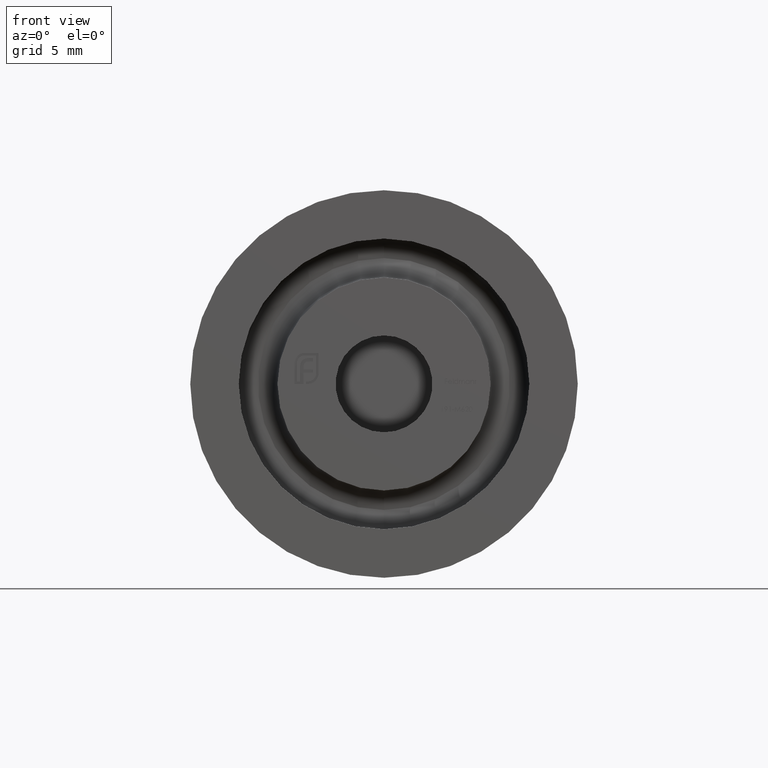
[diagram: clean part render]
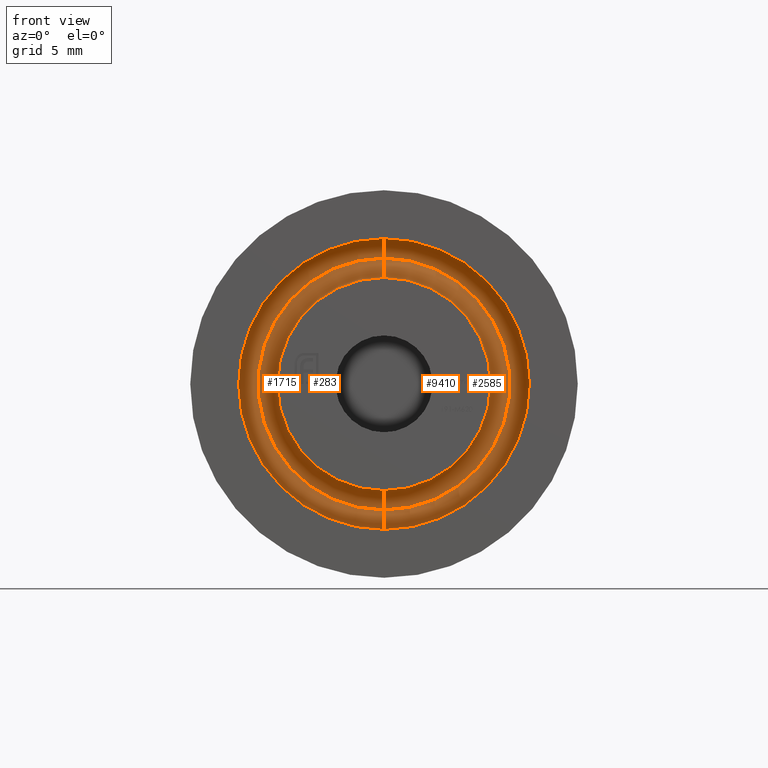
[diagram: same view with one multi-face feature highlighted, each face labeled with its STEP entity id]
A machine part, front view. The highlighted faces form ONE feature: a constant-radius fillet chain: 4 tangent blend faces with common blend radius 1 mm. The faces share edges in the B-rep.
Their STEP definitions:
[1] entity #2585 (Torus):
#234 = DIRECTION ( 'NONE',  ( -1.000000000000000000, -0.000000000000000000, -0.000000000000000000 ) ) ;
#1203 = ORIENTED_EDGE ( 'NONE', *, *, #12024, .T. ) ;
#1292 = VERTEX_POINT ( 'NONE', #8225 ) ;
#2585 = ADVANCED_FACE ( 'NONE', ( #7519 ), #10773, .F. ) ;
#4535 = EDGE_CURVE ( 'NONE', #11895, #7996, #5337, .T. ) ;
#4557 = CIRCLE ( 'NONE', #8206, 1.000000000000000000 ) ;
#4611 = DIRECTION ( 'NONE',  ( -0.000000000000000000, 1.000000000000000000, -0.000000000000000000 ) ) ;
#5337 = CIRCLE ( 'NONE', #14131, 7.500000000000000000 ) ;
#5494 = DIRECTION ( 'NONE',  ( -1.224646799147353454E-16, 0.000000000000000000, -1.000000000000000000 ) ) ;
#5743 = CARTESIAN_POINT ( 'NONE',  ( 0.000000000000000000, 3.000000000000000000, 0.000000000000000000 ) ) ;
#5919 = CARTESIAN_POINT ( 'NONE',  ( 0.000000000000000000, 2.000000000000000000, 0.000000000000000000 ) ) ;
#5969 = DIRECTION ( 'NONE',  ( 0.000000000000000000, 0.000000000000000000, -1.000000000000000000 ) ) ;
#7027 = DIRECTION ( 'NONE',  ( -0.000000000000000000, 1.000000000000000000, -0.000000000000000000 ) ) ;
#7150 = CARTESIAN_POINT ( 'NONE',  ( 0.000000000000000000, 2.000000000000000000, 0.000000000000000000 ) ) ;
#7519 = FACE_OUTER_BOUND ( 'NONE', #8544, .T. ) ;
#7756 = DIRECTION ( 'NONE',  ( 1.000000000000000000, 0.000000000000000000, -1.224646799147353207E-16 ) ) ;
#7966 = AXIS2_PLACEMENT_3D ( 'NONE', #7150, #10626, #11736 ) ;
#7996 = VERTEX_POINT ( 'NONE', #12736 ) ;
#8140 = CARTESIAN_POINT ( 'NONE',  ( 0.000000000000000000, 2.000000000000000000, -6.500000000000000000 ) ) ;
#8203 = CIRCLE ( 'NONE', #9260, 1.000000000000000000 ) ;
#8206 = AXIS2_PLACEMENT_3D ( 'NONE', #14650, #7756, #5494 ) ;
#8225 = CARTESIAN_POINT ( 'NONE',  ( 0.000000000000000000, 3.000000000000000888, -6.500000000000000000 ) ) ;
#8334 = DIRECTION ( 'NONE',  ( 0.000000000000000000, 0.000000000000000000, 1.000000000000000000 ) ) ;
#8366 = EDGE_CURVE ( 'NONE', #9546, #11895, #4557, .T. ) ;
#8544 = EDGE_LOOP ( 'NONE', ( #13641, #13460, #1203, #11136 ) ) ;
#8758 = AXIS2_PLACEMENT_3D ( 'NONE', #5743, #4611, #13891 ) ;
#9260 = AXIS2_PLACEMENT_3D ( 'NONE', #8140, #234, #8334 ) ;
#9546 = VERTEX_POINT ( 'NONE', #11522 ) ;
#9638 = CIRCLE ( 'NONE', #8758, 6.500000000000000000 ) ;
#9944 = CARTESIAN_POINT ( 'NONE',  ( 9.184850993605147944E-16, 2.000000000000000000, 7.500000000000000000 ) ) ;
#10626 = DIRECTION ( 'NONE',  ( 0.000000000000000000, -1.000000000000000000, 0.000000000000000000 ) ) ;
#10773 = TOROIDAL_SURFACE ( 'NONE', #7966, 6.500000000000000000, 1.000000000000000000 ) ;
#11136 = ORIENTED_EDGE ( 'NONE', *, *, #4535, .F. ) ;
#11522 = CARTESIAN_POINT ( 'NONE',  ( 7.960204194457795477E-16, 3.000000000000000888, 6.500000000000000000 ) ) ;
#11736 = DIRECTION ( 'NONE',  ( 0.000000000000000000, 0.000000000000000000, -1.000000000000000000 ) ) ;
#11895 = VERTEX_POINT ( 'NONE', #9944 ) ;
#12024 = EDGE_CURVE ( 'NONE', #1292, #7996, #8203, .T. ) ;
#12609 = EDGE_CURVE ( 'NONE', #9546, #1292, #9638, .T. ) ;
#12736 = CARTESIAN_POINT ( 'NONE',  ( 0.000000000000000000, 2.000000000000000000, -7.500000000000000000 ) ) ;
#13460 = ORIENTED_EDGE ( 'NONE', *, *, #12609, .T. ) ;
#13641 = ORIENTED_EDGE ( 'NONE', *, *, #8366, .F. ) ;
#13891 = DIRECTION ( 'NONE',  ( 0.000000000000000000, 0.000000000000000000, -1.000000000000000000 ) ) ;
#14131 = AXIS2_PLACEMENT_3D ( 'NONE', #5919, #7027, #5969 ) ;
#14650 = CARTESIAN_POINT ( 'NONE',  ( 7.960204194457795477E-16, 2.000000000000000000, 6.500000000000000000 ) ) ;
[2] entity #1715 (Torus):
#90 = DIRECTION ( 'NONE',  ( 0.000000000000000000, 0.000000000000000000, -1.000000000000000000 ) ) ;
#234 = DIRECTION ( 'NONE',  ( -1.000000000000000000, -0.000000000000000000, -0.000000000000000000 ) ) ;
#290 = DIRECTION ( 'NONE',  ( -0.000000000000000000, 1.000000000000000000, -0.000000000000000000 ) ) ;
#1249 = DIRECTION ( 'NONE',  ( -0.000000000000000000, 1.000000000000000000, -0.000000000000000000 ) ) ;
#1292 = VERTEX_POINT ( 'NONE', #8225 ) ;
#1627 = ORIENTED_EDGE ( 'NONE', *, *, #7124, .F. ) ;
#1715 = ADVANCED_FACE ( 'NONE', ( #3898 ), #12408, .F. ) ;
#2481 = DIRECTION ( 'NONE',  ( 0.000000000000000000, -1.000000000000000000, 0.000000000000000000 ) ) ;
#2517 = CARTESIAN_POINT ( 'NONE',  ( 0.000000000000000000, 3.000000000000000000, 0.000000000000000000 ) ) ;
#2541 = CARTESIAN_POINT ( 'NONE',  ( 0.000000000000000000, 2.000000000000000000, 0.000000000000000000 ) ) ;
#2811 = CIRCLE ( 'NONE', #10772, 6.500000000000000000 ) ;
#2989 = EDGE_CURVE ( 'NONE', #1292, #9546, #2811, .T. ) ;
#3231 = ORIENTED_EDGE ( 'NONE', *, *, #12024, .F. ) ;
#3705 = AXIS2_PLACEMENT_3D ( 'NONE', #2541, #290, #8403 ) ;
#3898 = FACE_OUTER_BOUND ( 'NONE', #7436, .T. ) ;
#4557 = CIRCLE ( 'NONE', #8206, 1.000000000000000000 ) ;
#5494 = DIRECTION ( 'NONE',  ( -1.224646799147353454E-16, 0.000000000000000000, -1.000000000000000000 ) ) ;
#7008 = ORIENTED_EDGE ( 'NONE', *, *, #8366, .T. ) ;
#7124 = EDGE_CURVE ( 'NONE', #7996, #11895, #13778, .T. ) ;
#7436 = EDGE_LOOP ( 'NONE', ( #9938, #7008, #1627, #3231 ) ) ;
#7756 = DIRECTION ( 'NONE',  ( 1.000000000000000000, 0.000000000000000000, -1.224646799147353207E-16 ) ) ;
#7996 = VERTEX_POINT ( 'NONE', #12736 ) ;
#8140 = CARTESIAN_POINT ( 'NONE',  ( 0.000000000000000000, 2.000000000000000000, -6.500000000000000000 ) ) ;
#8203 = CIRCLE ( 'NONE', #9260, 1.000000000000000000 ) ;
#8206 = AXIS2_PLACEMENT_3D ( 'NONE', #14650, #7756, #5494 ) ;
#8225 = CARTESIAN_POINT ( 'NONE',  ( 0.000000000000000000, 3.000000000000000888, -6.500000000000000000 ) ) ;
#8334 = DIRECTION ( 'NONE',  ( 0.000000000000000000, 0.000000000000000000, 1.000000000000000000 ) ) ;
#8366 = EDGE_CURVE ( 'NONE', #9546, #11895, #4557, .T. ) ;
#8403 = DIRECTION ( 'NONE',  ( 0.000000000000000000, 0.000000000000000000, -1.000000000000000000 ) ) ;
#9260 = AXIS2_PLACEMENT_3D ( 'NONE', #8140, #234, #8334 ) ;
#9546 = VERTEX_POINT ( 'NONE', #11522 ) ;
#9554 = CARTESIAN_POINT ( 'NONE',  ( 0.000000000000000000, 2.000000000000000000, 0.000000000000000000 ) ) ;
#9938 = ORIENTED_EDGE ( 'NONE', *, *, #2989, .T. ) ;
#9944 = CARTESIAN_POINT ( 'NONE',  ( 9.184850993605147944E-16, 2.000000000000000000, 7.500000000000000000 ) ) ;
#10772 = AXIS2_PLACEMENT_3D ( 'NONE', #2517, #1249, #90 ) ;
#11522 = CARTESIAN_POINT ( 'NONE',  ( 7.960204194457795477E-16, 3.000000000000000888, 6.500000000000000000 ) ) ;
#11895 = VERTEX_POINT ( 'NONE', #9944 ) ;
#12024 = EDGE_CURVE ( 'NONE', #1292, #7996, #8203, .T. ) ;
#12408 = TOROIDAL_SURFACE ( 'NONE', #14145, 6.500000000000000000, 1.000000000000000000 ) ;
#12736 = CARTESIAN_POINT ( 'NONE',  ( 0.000000000000000000, 2.000000000000000000, -7.500000000000000000 ) ) ;
#13778 = CIRCLE ( 'NONE', #3705, 7.500000000000000000 ) ;
#14145 = AXIS2_PLACEMENT_3D ( 'NONE', #9554, #2481, #14223 ) ;
#14223 = DIRECTION ( 'NONE',  ( 0.000000000000000000, 0.000000000000000000, -1.000000000000000000 ) ) ;
#14650 = CARTESIAN_POINT ( 'NONE',  ( 7.960204194457795477E-16, 2.000000000000000000, 6.500000000000000000 ) ) ;
[3] entity #283 (Torus):
#90 = DIRECTION ( 'NONE',  ( 0.000000000000000000, 0.000000000000000000, -1.000000000000000000 ) ) ;
#283 = ADVANCED_FACE ( 'NONE', ( #8283 ), #1591, .F. ) ;
#656 = ORIENTED_EDGE ( 'NONE', *, *, #4018, .F. ) ;
#1249 = DIRECTION ( 'NONE',  ( -0.000000000000000000, 1.000000000000000000, -0.000000000000000000 ) ) ;
#1292 = VERTEX_POINT ( 'NONE', #8225 ) ;
#1423 = DIRECTION ( 'NONE',  ( -1.000000000000000000, -0.000000000000000000, -0.000000000000000000 ) ) ;
#1591 = TOROIDAL_SURFACE ( 'NONE', #13518, 6.500000000000000000, 1.000000000000000000 ) ;
#2151 = ORIENTED_EDGE ( 'NONE', *, *, #5243, .T. ) ;
#2414 = EDGE_CURVE ( 'NONE', #5963, #14077, #11506, .T. ) ;
#2517 = CARTESIAN_POINT ( 'NONE',  ( 0.000000000000000000, 3.000000000000000000, 0.000000000000000000 ) ) ;
#2590 = CARTESIAN_POINT ( 'NONE',  ( 0.000000000000000000, 2.000000000000001776, -6.500000000000000000 ) ) ;
#2609 = EDGE_LOOP ( 'NONE', ( #12620, #2151, #12155, #656 ) ) ;
#2808 = CIRCLE ( 'NONE', #13149, 1.000000000000000000 ) ;
#2811 = CIRCLE ( 'NONE', #10772, 6.500000000000000000 ) ;
#2989 = EDGE_CURVE ( 'NONE', #1292, #9546, #2811, .T. ) ;
#4018 = EDGE_CURVE ( 'NONE', #14077, #1292, #9677, .T. ) ;
#4246 = CARTESIAN_POINT ( 'NONE',  ( 0.000000000000000000, 2.000000000000001776, 5.500000000000000000 ) ) ;
#5076 = DIRECTION ( 'NONE',  ( 0.000000000000000000, -1.000000000000000000, 0.000000000000000000 ) ) ;
#5243 = EDGE_CURVE ( 'NONE', #5963, #9546, #2808, .T. ) ;
#5342 = AXIS2_PLACEMENT_3D ( 'NONE', #6155, #5076, #13145 ) ;
#5898 = CARTESIAN_POINT ( 'NONE',  ( 7.960204194457795477E-16, 2.000000000000001776, 6.500000000000000000 ) ) ;
#5963 = VERTEX_POINT ( 'NONE', #4246 ) ;
#6083 = DIRECTION ( 'NONE',  ( 0.000000000000000000, 0.000000000000000000, 1.000000000000000000 ) ) ;
#6155 = CARTESIAN_POINT ( 'NONE',  ( 0.000000000000000000, 2.000000000000001776, 0.000000000000000000 ) ) ;
#6429 = CARTESIAN_POINT ( 'NONE',  ( 0.000000000000000000, 2.000000000000001776, 0.000000000000000000 ) ) ;
#7576 = DIRECTION ( 'NONE',  ( 0.000000000000000000, -1.000000000000000000, 0.000000000000000000 ) ) ;
#8225 = CARTESIAN_POINT ( 'NONE',  ( 0.000000000000000000, 3.000000000000000888, -6.500000000000000000 ) ) ;
#8283 = FACE_OUTER_BOUND ( 'NONE', #2609, .T. ) ;
#9546 = VERTEX_POINT ( 'NONE', #11522 ) ;
#9677 = CIRCLE ( 'NONE', #9949, 1.000000000000000000 ) ;
#9949 = AXIS2_PLACEMENT_3D ( 'NONE', #2590, #1423, #6083 ) ;
#10772 = AXIS2_PLACEMENT_3D ( 'NONE', #2517, #1249, #90 ) ;
#11506 = CIRCLE ( 'NONE', #5342, 5.500000000000000000 ) ;
#11522 = CARTESIAN_POINT ( 'NONE',  ( 7.960204194457795477E-16, 3.000000000000000888, 6.500000000000000000 ) ) ;
#11640 = DIRECTION ( 'NONE',  ( 1.000000000000000000, 0.000000000000000000, -1.224646799147353207E-16 ) ) ;
#12155 = ORIENTED_EDGE ( 'NONE', *, *, #2989, .F. ) ;
#12323 = DIRECTION ( 'NONE',  ( 0.000000000000000000, 0.000000000000000000, -1.000000000000000000 ) ) ;
#12620 = ORIENTED_EDGE ( 'NONE', *, *, #2414, .F. ) ;
#12705 = DIRECTION ( 'NONE',  ( -1.224646799147353454E-16, 0.000000000000000000, -1.000000000000000000 ) ) ;
#13145 = DIRECTION ( 'NONE',  ( 0.000000000000000000, 0.000000000000000000, -1.000000000000000000 ) ) ;
#13149 = AXIS2_PLACEMENT_3D ( 'NONE', #5898, #11640, #12705 ) ;
#13518 = AXIS2_PLACEMENT_3D ( 'NONE', #6429, #7576, #12323 ) ;
#14077 = VERTEX_POINT ( 'NONE', #14895 ) ;
#14895 = CARTESIAN_POINT ( 'NONE',  ( 6.735557395310442023E-16, 2.000000000000001776, -5.500000000000000000 ) ) ;
[4] entity #9410 (Torus):
#1292 = VERTEX_POINT ( 'NONE', #8225 ) ;
#1423 = DIRECTION ( 'NONE',  ( -1.000000000000000000, -0.000000000000000000, -0.000000000000000000 ) ) ;
#2359 = AXIS2_PLACEMENT_3D ( 'NONE', #4772, #11738, #11591 ) ;
#2590 = CARTESIAN_POINT ( 'NONE',  ( 0.000000000000000000, 2.000000000000001776, -6.500000000000000000 ) ) ;
#2623 = CIRCLE ( 'NONE', #2359, 5.500000000000000000 ) ;
#2808 = CIRCLE ( 'NONE', #13149, 1.000000000000000000 ) ;
#4018 = EDGE_CURVE ( 'NONE', #14077, #1292, #9677, .T. ) ;
#4246 = CARTESIAN_POINT ( 'NONE',  ( 0.000000000000000000, 2.000000000000001776, 5.500000000000000000 ) ) ;
#4611 = DIRECTION ( 'NONE',  ( -0.000000000000000000, 1.000000000000000000, -0.000000000000000000 ) ) ;
#4772 = CARTESIAN_POINT ( 'NONE',  ( 0.000000000000000000, 2.000000000000001776, 0.000000000000000000 ) ) ;
#5243 = EDGE_CURVE ( 'NONE', #5963, #9546, #2808, .T. ) ;
#5617 = ORIENTED_EDGE ( 'NONE', *, *, #4018, .T. ) ;
#5743 = CARTESIAN_POINT ( 'NONE',  ( 0.000000000000000000, 3.000000000000000000, 0.000000000000000000 ) ) ;
#5898 = CARTESIAN_POINT ( 'NONE',  ( 7.960204194457795477E-16, 2.000000000000001776, 6.500000000000000000 ) ) ;
#5963 = VERTEX_POINT ( 'NONE', #4246 ) ;
#6083 = DIRECTION ( 'NONE',  ( 0.000000000000000000, 0.000000000000000000, 1.000000000000000000 ) ) ;
#6430 = EDGE_CURVE ( 'NONE', #14077, #5963, #2623, .T. ) ;
#7370 = ORIENTED_EDGE ( 'NONE', *, *, #12609, .F. ) ;
#7427 = FACE_OUTER_BOUND ( 'NONE', #9600, .T. ) ;
#8225 = CARTESIAN_POINT ( 'NONE',  ( 0.000000000000000000, 3.000000000000000888, -6.500000000000000000 ) ) ;
#8758 = AXIS2_PLACEMENT_3D ( 'NONE', #5743, #4611, #13891 ) ;
#8790 = CARTESIAN_POINT ( 'NONE',  ( 0.000000000000000000, 2.000000000000001776, 0.000000000000000000 ) ) ;
#8886 = DIRECTION ( 'NONE',  ( 0.000000000000000000, 0.000000000000000000, -1.000000000000000000 ) ) ;
#8964 = ORIENTED_EDGE ( 'NONE', *, *, #5243, .F. ) ;
#9410 = ADVANCED_FACE ( 'NONE', ( #7427 ), #14284, .F. ) ;
#9546 = VERTEX_POINT ( 'NONE', #11522 ) ;
#9600 = EDGE_LOOP ( 'NONE', ( #8964, #13388, #5617, #7370 ) ) ;
#9638 = CIRCLE ( 'NONE', #8758, 6.500000000000000000 ) ;
#9677 = CIRCLE ( 'NONE', #9949, 1.000000000000000000 ) ;
#9949 = AXIS2_PLACEMENT_3D ( 'NONE', #2590, #1423, #6083 ) ;
#11108 = DIRECTION ( 'NONE',  ( 0.000000000000000000, -1.000000000000000000, 0.000000000000000000 ) ) ;
#11522 = CARTESIAN_POINT ( 'NONE',  ( 7.960204194457795477E-16, 3.000000000000000888, 6.500000000000000000 ) ) ;
#11591 = DIRECTION ( 'NONE',  ( 0.000000000000000000, 0.000000000000000000, -1.000000000000000000 ) ) ;
#11640 = DIRECTION ( 'NONE',  ( 1.000000000000000000, 0.000000000000000000, -1.224646799147353207E-16 ) ) ;
#11738 = DIRECTION ( 'NONE',  ( 0.000000000000000000, -1.000000000000000000, 0.000000000000000000 ) ) ;
#12129 = AXIS2_PLACEMENT_3D ( 'NONE', #8790, #11108, #8886 ) ;
#12609 = EDGE_CURVE ( 'NONE', #9546, #1292, #9638, .T. ) ;
#12705 = DIRECTION ( 'NONE',  ( -1.224646799147353454E-16, 0.000000000000000000, -1.000000000000000000 ) ) ;
#13149 = AXIS2_PLACEMENT_3D ( 'NONE', #5898, #11640, #12705 ) ;
#13388 = ORIENTED_EDGE ( 'NONE', *, *, #6430, .F. ) ;
#13891 = DIRECTION ( 'NONE',  ( 0.000000000000000000, 0.000000000000000000, -1.000000000000000000 ) ) ;
#14077 = VERTEX_POINT ( 'NONE', #14895 ) ;
#14284 = TOROIDAL_SURFACE ( 'NONE', #12129, 6.500000000000000000, 1.000000000000000000 ) ;
#14895 = CARTESIAN_POINT ( 'NONE',  ( 6.735557395310442023E-16, 2.000000000000001776, -5.500000000000000000 ) ) ;